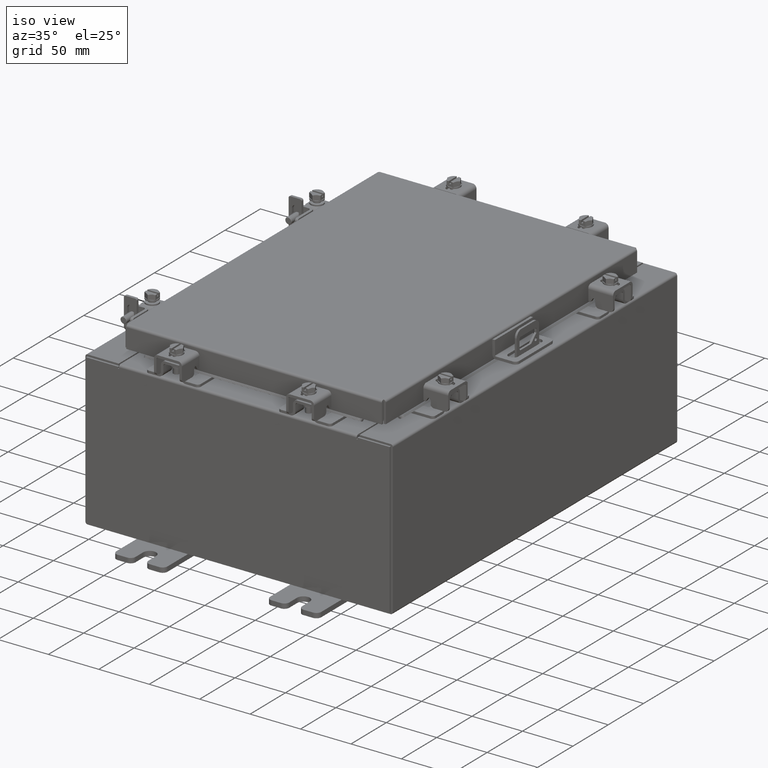
[diagram: clean part render]
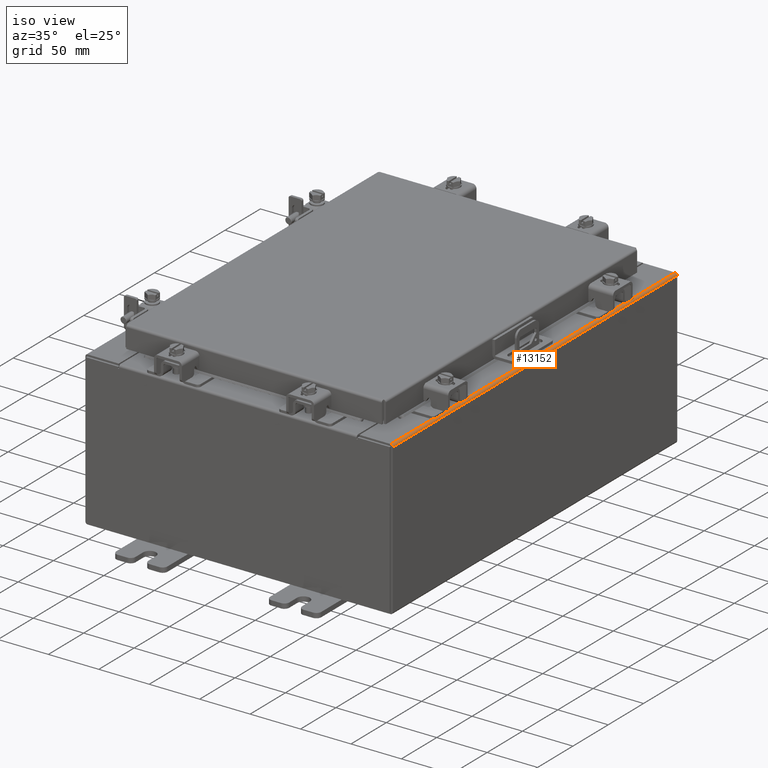
[diagram: same view with one face highlighted and labeled with its STEP entity id]
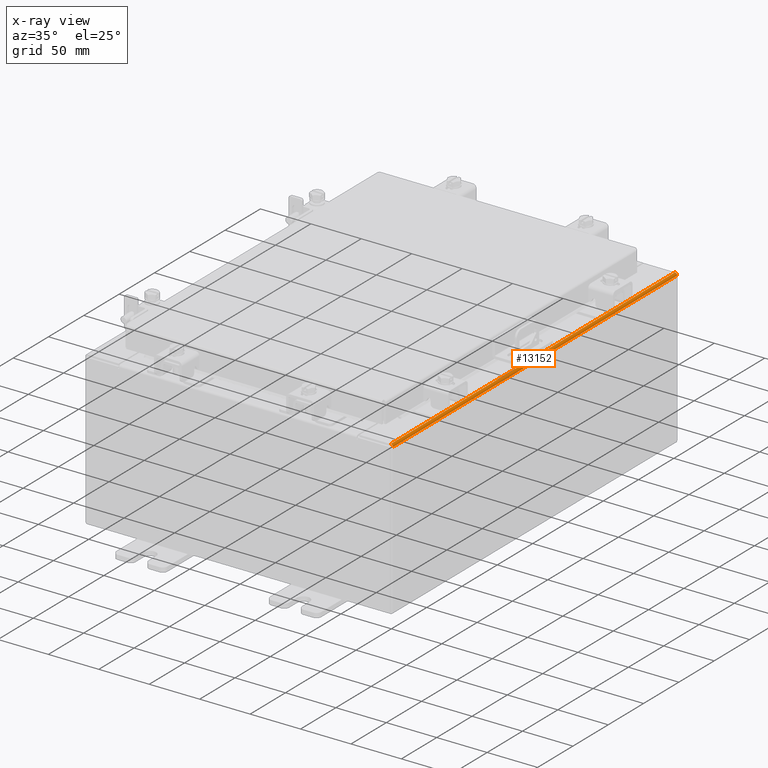
[diagram: x-ray of the same camera — body ghosted, the highlighted face saturated]
A machine part, iso view. The second image highlights one B-rep face of the part: STEP entity #13152.
The next image is the same camera in x-ray: the body ghosted, the highlighted face saturated — about 0% of this face is hidden behind the body in this view.
In plain terms, the highlighted cylindrical surface (edge-blend (fillet) strip) has radius 2.2276 mm, axis along (0, 1, 0).
Its self-contained STEP definition (entity closure, byte-faithful):
#613 = CARTESIAN_POINT ( 'NONE',  ( 5.912300000000019700, 7.925300000000000000, 5.837600000000001000 ) ) ;
#775 = ORIENTED_EDGE ( 'NONE', *, *, #15162, .F. ) ;
#1352 = CARTESIAN_POINT ( 'NONE',  ( 5.912300000000019700, 7.925300000000000000, 5.837600000000001000 ) ) ;
#2241 = DIRECTION ( 'NONE',  ( 0.0000000000000000000, 0.0000000000000000000, 1.000000000000000000 ) ) ;
#2406 = CARTESIAN_POINT ( 'NONE',  ( 5.912300000000019700, -7.925300000000000000, 5.925300000000001800 ) ) ;
#2434 = EDGE_CURVE ( 'NONE', #9110, #9084, #11496, .T. ) ;
#2453 = CARTESIAN_POINT ( 'NONE',  ( 6.000000000000020400, -7.925300000000000000, 5.837600000000001000 ) ) ;
#3153 = AXIS2_PLACEMENT_3D ( 'NONE', #14591, #4986, #16211 ) ;
#3815 = EDGE_LOOP ( 'NONE', ( #12180, #775, #13755, #12467 ) ) ;
#4609 = DIRECTION ( 'NONE',  ( 0.0000000000000000000, 1.000000000000000000, 0.0000000000000000000 ) ) ;
#4986 = DIRECTION ( 'NONE',  ( -0.0000000000000000000, -1.000000000000000000, -0.0000000000000000000 ) ) ;
#5099 = AXIS2_PLACEMENT_3D ( 'NONE', #613, #11906, #2241 ) ;
#6149 = CIRCLE ( 'NONE', #3153, 0.08770000000000026400 ) ;
#7202 = VECTOR ( 'NONE', #19288, 39.37007874015748100 ) ;
#7418 = VERTEX_POINT ( 'NONE', #11164 ) ;
#8060 = VECTOR ( 'NONE', #14846, 39.37007874015748100 ) ;
#9084 = VERTEX_POINT ( 'NONE', #2406 ) ;
#9110 = VERTEX_POINT ( 'NONE', #13736 ) ;
#9693 = CARTESIAN_POINT ( 'NONE',  ( 5.912300000000019700, -7.925300000000000000, 5.925300000000001800 ) ) ;
#11164 = CARTESIAN_POINT ( 'NONE',  ( 6.000000000000020400, 7.925300000000000000, 5.837600000000001000 ) ) ;
#11496 = LINE ( 'NONE', #9693, #7202 ) ;
#11906 = DIRECTION ( 'NONE',  ( 0.0000000000000000000, 1.000000000000000000, 0.0000000000000000000 ) ) ;
#11912 = CYLINDRICAL_SURFACE ( 'NONE', #20120, 0.08770000000000026400 ) ;
#12180 = ORIENTED_EDGE ( 'NONE', *, *, #18712, .F. ) ;
#12389 = FACE_OUTER_BOUND ( 'NONE', #3815, .T. ) ;
#12467 = ORIENTED_EDGE ( 'NONE', *, *, #19871, .F. ) ;
#13152 = ADVANCED_FACE ( 'NONE', ( #12389 ), #11912, .T. ) ;
#13736 = CARTESIAN_POINT ( 'NONE',  ( 5.912300000000019700, 7.925300000000000000, 5.925300000000001800 ) ) ;
#13755 = ORIENTED_EDGE ( 'NONE', *, *, #2434, .T. ) ;
#14591 = CARTESIAN_POINT ( 'NONE',  ( 5.912300000000019700, -7.925300000000000000, 5.837600000000001000 ) ) ;
#14846 = DIRECTION ( 'NONE',  ( -0.0000000000000000000, -1.000000000000000000, -0.0000000000000000000 ) ) ;
#15162 = EDGE_CURVE ( 'NONE', #9110, #7418, #16334, .T. ) ;
#16211 = DIRECTION ( 'NONE',  ( 0.0000000000000000000, 0.0000000000000000000, 1.000000000000000000 ) ) ;
#16334 = CIRCLE ( 'NONE', #5099, 0.08770000000000026400 ) ;
#16569 = LINE ( 'NONE', #19610, #8060 ) ;
#18712 = EDGE_CURVE ( 'NONE', #7418, #19537, #16569, .T. ) ;
#19288 = DIRECTION ( 'NONE',  ( -0.0000000000000000000, -1.000000000000000000, -0.0000000000000000000 ) ) ;
#19537 = VERTEX_POINT ( 'NONE', #2453 ) ;
#19610 = CARTESIAN_POINT ( 'NONE',  ( 6.000000000000020400, 7.925300000000000000, 5.837600000000001000 ) ) ;
#19871 = EDGE_CURVE ( 'NONE', #19537, #9084, #6149, .T. ) ;
#20120 = AXIS2_PLACEMENT_3D ( 'NONE', #1352, #4609, #20624 ) ;
#20624 = DIRECTION ( 'NONE',  ( 1.245996804407870000E-014, 0.0000000000000000000, 1.000000000000000000 ) ) ;